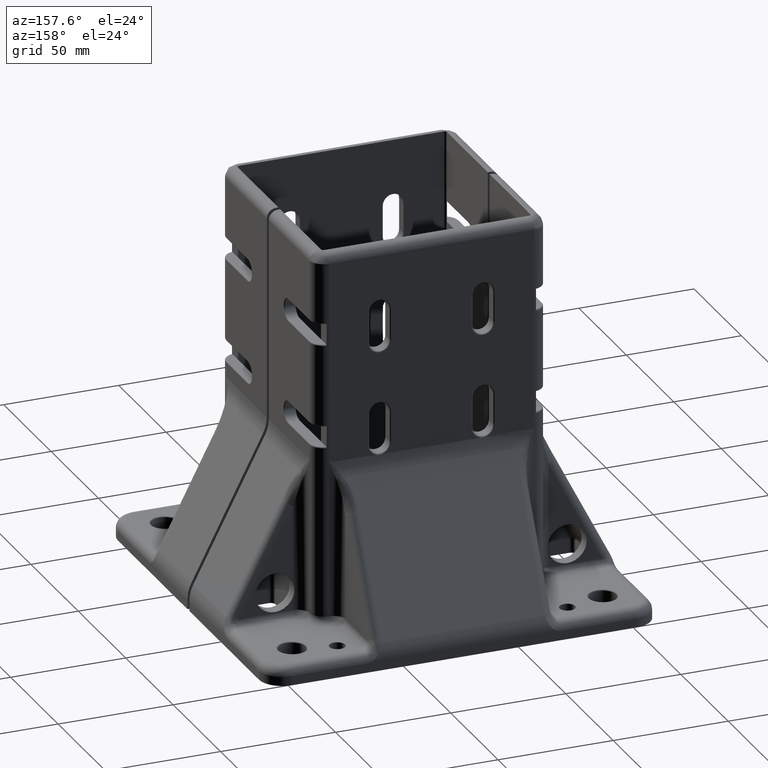
[diagram: clean part render]
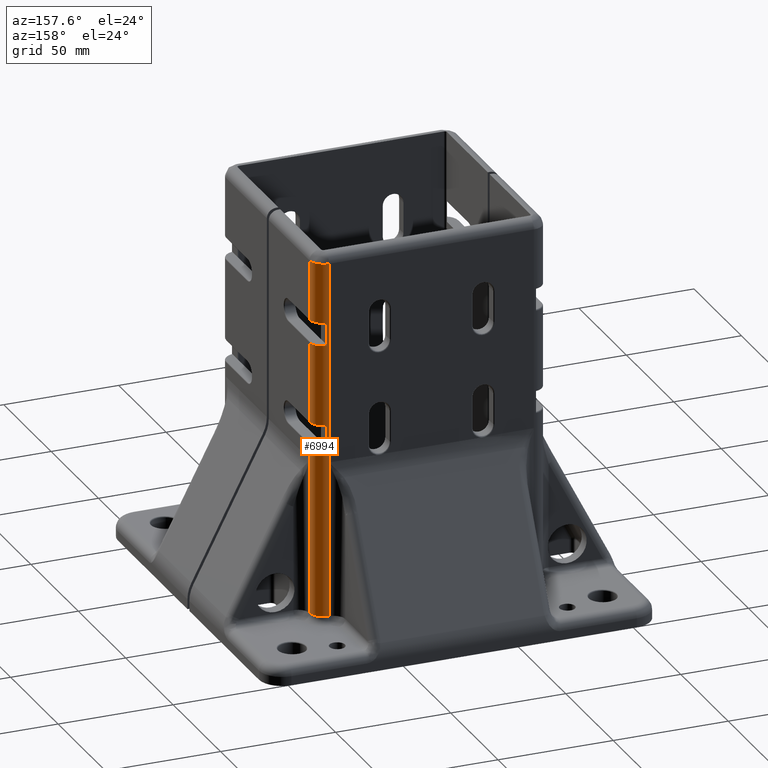
[diagram: same view with one face highlighted and labeled with its STEP entity id]
A machine part, auxiliary view. The second image highlights one B-rep face of the part: STEP entity #6994.
In plain terms, the highlighted cylindrical surface (edge-blend (fillet) strip) has radius 6 mm, axis along (0, 0, -1).
Its self-contained STEP definition (entity closure, byte-faithful):
#438=FACE_OUTER_BOUND('',#862,.T.);
#862=EDGE_LOOP('',(#4754,#4755,#4756,#4757,#4758,#4759,#4760,#4761,#4762,
#4763,#4764,#4765,#4766,#4767));
#1335=LINE('',#11266,#1837);
#1339=LINE('',#11274,#1841);
#1342=LINE('',#11279,#1844);
#1355=LINE('',#11310,#1857);
#1356=LINE('',#11315,#1858);
#1357=LINE('',#11320,#1859);
#1358=LINE('',#11323,#1860);
#1359=LINE('',#11326,#1861);
#1837=VECTOR('',#8576,1000.);
#1841=VECTOR('',#8580,1000.);
#1844=VECTOR('',#8583,1000.);
#1857=VECTOR('',#8604,1000.);
#1858=VECTOR('',#8609,1000.);
#1859=VECTOR('',#8614,1000.);
#1860=VECTOR('',#8617,1000.);
#1861=VECTOR('',#8620,1000.);
#2383=CIRCLE('',#7526,6.);
#2384=CIRCLE('',#7527,6.);
#2385=CIRCLE('',#7528,6.);
#2386=CIRCLE('',#7529,6.);
#2387=CIRCLE('',#7530,6.);
#2388=CIRCLE('',#7531,6.);
#2919=VERTEX_POINT('',#11264);
#2920=VERTEX_POINT('',#11265);
#2923=VERTEX_POINT('',#11271);
#2924=VERTEX_POINT('',#11273);
#2925=VERTEX_POINT('',#11276);
#2926=VERTEX_POINT('',#11278);
#2939=VERTEX_POINT('',#11308);
#2940=VERTEX_POINT('',#11309);
#2941=VERTEX_POINT('',#11312);
#2942=VERTEX_POINT('',#11314);
#2943=VERTEX_POINT('',#11317);
#2944=VERTEX_POINT('',#11319);
#2945=VERTEX_POINT('',#11322);
#2946=VERTEX_POINT('',#11324);
#3599=EDGE_CURVE('',#2919,#2920,#1335,.T.);
#3603=EDGE_CURVE('',#2924,#2923,#1339,.T.);
#3606=EDGE_CURVE('',#2926,#2925,#1342,.T.);
#3621=EDGE_CURVE('',#2939,#2940,#1355,.T.);
#3622=EDGE_CURVE('',#2939,#2919,#2383,.T.);
#3623=EDGE_CURVE('',#2920,#2941,#2384,.T.);
#3624=EDGE_CURVE('',#2941,#2942,#1356,.T.);
#3625=EDGE_CURVE('',#2942,#2926,#2385,.T.);
#3626=EDGE_CURVE('',#2925,#2943,#2386,.T.);
#3627=EDGE_CURVE('',#2943,#2944,#1357,.T.);
#3628=EDGE_CURVE('',#2944,#2924,#2387,.T.);
#3629=EDGE_CURVE('',#2923,#2945,#1358,.T.);
#3630=EDGE_CURVE('',#2945,#2946,#2388,.T.);
#3631=EDGE_CURVE('',#2940,#2946,#1359,.T.);
#4754=ORIENTED_EDGE('',*,*,#3621,.F.);
#4755=ORIENTED_EDGE('',*,*,#3622,.T.);
#4756=ORIENTED_EDGE('',*,*,#3599,.T.);
#4757=ORIENTED_EDGE('',*,*,#3623,.T.);
#4758=ORIENTED_EDGE('',*,*,#3624,.T.);
#4759=ORIENTED_EDGE('',*,*,#3625,.T.);
#4760=ORIENTED_EDGE('',*,*,#3606,.T.);
#4761=ORIENTED_EDGE('',*,*,#3626,.T.);
#4762=ORIENTED_EDGE('',*,*,#3627,.T.);
#4763=ORIENTED_EDGE('',*,*,#3628,.T.);
#4764=ORIENTED_EDGE('',*,*,#3603,.T.);
#4765=ORIENTED_EDGE('',*,*,#3629,.T.);
#4766=ORIENTED_EDGE('',*,*,#3630,.T.);
#4767=ORIENTED_EDGE('',*,*,#3631,.F.);
#6805=CYLINDRICAL_SURFACE('',#7525,6.);
#6994=ADVANCED_FACE('',(#438),#6805,.T.);
#7525=AXIS2_PLACEMENT_3D('',#11307,#8602,#8603);
#7526=AXIS2_PLACEMENT_3D('',#11311,#8605,#8606);
#7527=AXIS2_PLACEMENT_3D('',#11313,#8607,#8608);
#7528=AXIS2_PLACEMENT_3D('',#11316,#8610,#8611);
#7529=AXIS2_PLACEMENT_3D('',#11318,#8612,#8613);
#7530=AXIS2_PLACEMENT_3D('',#11321,#8615,#8616);
#7531=AXIS2_PLACEMENT_3D('',#11325,#8618,#8619);
#8576=DIRECTION('',(0.,0.,-1.));
#8580=DIRECTION('',(0.,0.,-1.));
#8583=DIRECTION('',(0.,0.,-1.));
#8602=DIRECTION('center_axis',(0.,0.,-1.));
#8603=DIRECTION('ref_axis',(-1.,0.,0.));
#8604=DIRECTION('',(0.,0.,-1.));
#8605=DIRECTION('center_axis',(0.,0.,-1.));
#8606=DIRECTION('ref_axis',(-1.,0.,0.));
#8607=DIRECTION('center_axis',(0.,0.,1.));
#8608=DIRECTION('ref_axis',(-1.,1.15648231731787E-15,0.));
#8609=DIRECTION('',(0.,0.,-1.));
#8610=DIRECTION('center_axis',(0.,0.,-1.));
#8611=DIRECTION('ref_axis',(1.,-1.73472347597681E-15,0.));
#8612=DIRECTION('center_axis',(0.,0.,1.));
#8613=DIRECTION('ref_axis',(-1.,1.15648231731787E-15,0.));
#8614=DIRECTION('',(0.,0.,-1.));
#8615=DIRECTION('center_axis',(0.,0.,-1.));
#8616=DIRECTION('ref_axis',(1.,-1.73472347597681E-15,0.));
#8617=DIRECTION('',(0.,0.,-1.));
#8618=DIRECTION('center_axis',(0.,0.,1.));
#8619=DIRECTION('ref_axis',(-1.,0.,0.));
#8620=DIRECTION('',(0.,0.,-1.));
#11264=CARTESIAN_POINT('',(27.9718944343886,19.0472033968336,165.99999999998));
#11265=CARTESIAN_POINT('',(27.9718944343886,19.0472033968336,139.99999999998));
#11266=CARTESIAN_POINT('',(27.9718944343886,19.0472033968336,169.99999999998));
#11271=CARTESIAN_POINT('',(27.9718944343886,19.0472033968336,78.6351299252134));
#11273=CARTESIAN_POINT('',(27.9718944343886,19.0472033968336,84.9999999999795));
#11274=CARTESIAN_POINT('',(27.9718944343886,19.0472033968336,169.99999999998));
#11276=CARTESIAN_POINT('',(27.9718944343886,19.0472033968336,94.9999999999796));
#11278=CARTESIAN_POINT('',(27.9718944343886,19.0472033968336,129.99999999998));
#11279=CARTESIAN_POINT('',(27.9718944343886,19.0472033968336,169.99999999998));
#11307=CARTESIAN_POINT('Origin',(21.9718944343886,19.0472033968336,169.99999999998));
#11308=CARTESIAN_POINT('',(21.9718944343886,25.0472033968336,165.99999999998));
#11309=CARTESIAN_POINT('',(21.9718944343886,25.0472033968336,78.6351299252134));
#11310=CARTESIAN_POINT('',(21.9718944343886,25.0472033968336,169.99999999998));
#11311=CARTESIAN_POINT('Origin',(21.9718944343886,19.0472033968336,165.99999999998));
#11312=CARTESIAN_POINT('',(22.9718944343886,24.9632831799332,139.99999999998));
#11313=CARTESIAN_POINT('Origin',(21.9718944343886,19.0472033968336,139.99999999998));
#11314=CARTESIAN_POINT('',(22.9718944343886,24.9632831799332,129.99999999998));
#11315=CARTESIAN_POINT('',(22.9718944343886,24.9632831799332,169.99999999998));
#11316=CARTESIAN_POINT('Origin',(21.9718944343886,19.0472033968336,129.99999999998));
#11317=CARTESIAN_POINT('',(22.9718944343886,24.9632831799332,94.9999999999796));
#11318=CARTESIAN_POINT('Origin',(21.9718944343886,19.0472033968336,94.9999999999796));
#11319=CARTESIAN_POINT('',(22.9718944343886,24.9632831799332,84.9999999999795));
#11320=CARTESIAN_POINT('',(22.9718944343886,24.9632831799332,169.99999999998));
#11321=CARTESIAN_POINT('Origin',(21.9718944343886,19.0472033968336,84.9999999999795));
#11322=CARTESIAN_POINT('',(27.9718944343886,19.0472033968336,10.9999999999795));
#11323=CARTESIAN_POINT('',(27.9718944343886,19.0472033968336,169.99999999998));
#11324=CARTESIAN_POINT('',(21.9718944343886,25.0472033968336,10.9999999999795));
#11325=CARTESIAN_POINT('Origin',(21.9718944343886,19.0472033968336,10.9999999999795));
#11326=CARTESIAN_POINT('',(21.9718944343886,25.0472033968336,169.99999999998));